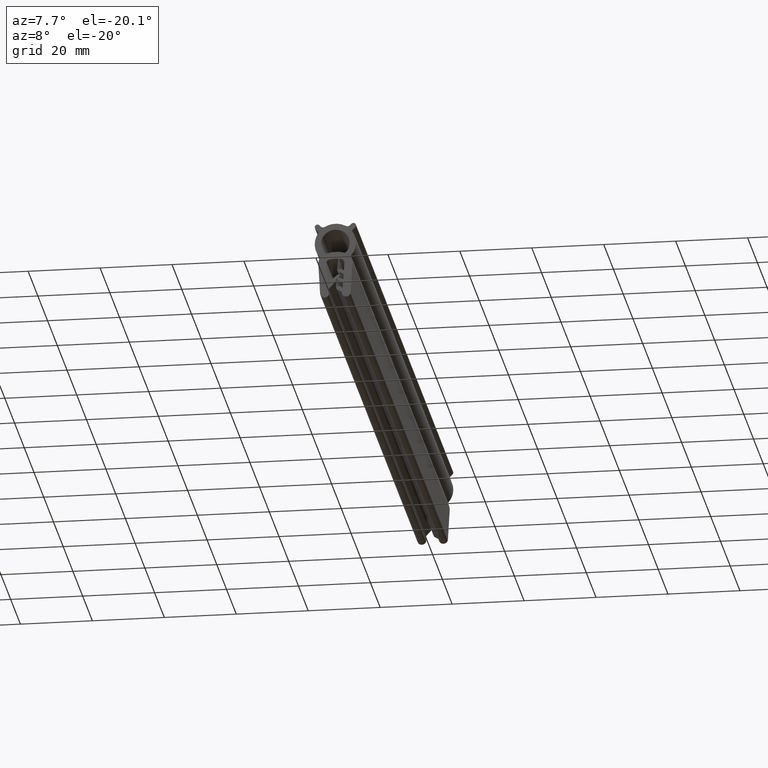
[diagram: clean part render]
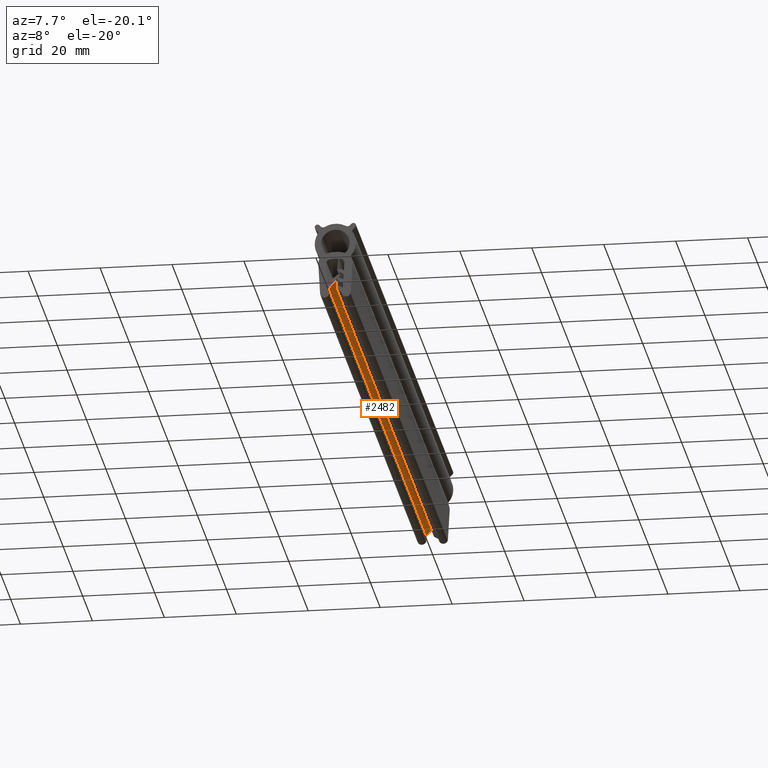
[diagram: same view with one face highlighted and labeled with its STEP entity id]
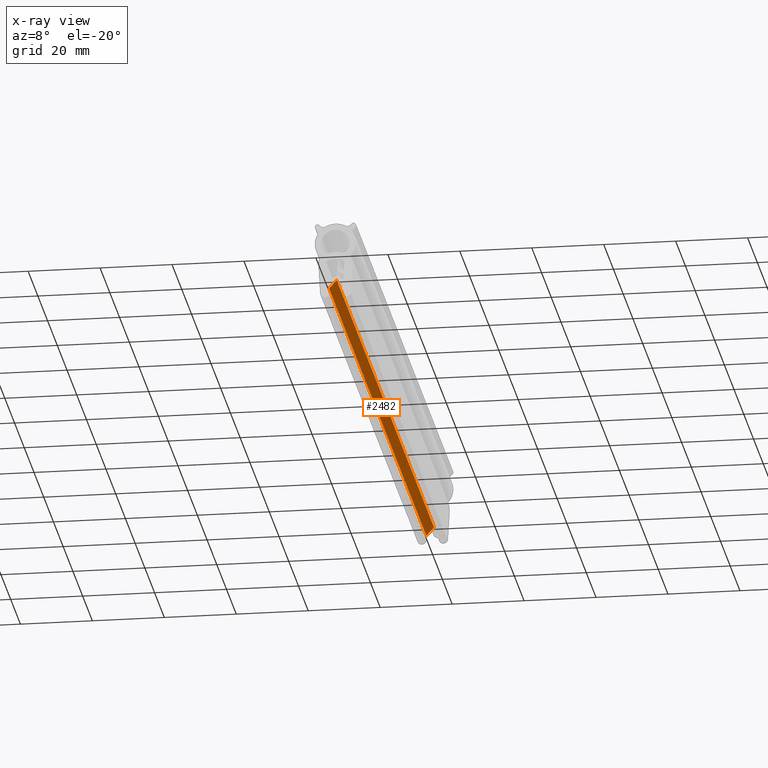
[diagram: x-ray of the same camera — body ghosted, the highlighted face saturated]
A machine part, auxiliary view. The second image highlights one B-rep face of the part: STEP entity #2482.
The next image is the same camera in x-ray: the body ghosted, the highlighted face saturated — about 0% of this face is hidden behind the body in this view.
In plain terms, the highlighted face is a freeform B-spline surface patch.
Its self-contained STEP definition (entity closure, byte-faithful):
#650=CARTESIAN_POINT('',(-1.747408564051310,0.0,-18.961503437126652));
#651=VERTEX_POINT('',#650);
#665=CARTESIAN_POINT('',(0.371731644922985,0.0,-16.573792287004348));
#666=VERTEX_POINT('',#665);
#667=CARTESIAN_POINT('',(0.371731644922985,0.0,-16.573792287004348));
#668=CARTESIAN_POINT('',(-1.747408564051310,0.0,-18.961503437126652));
#669=QUASI_UNIFORM_CURVE('',1,(#667,#668),.UNSPECIFIED.,.F.,.U.);
#670=EDGE_CURVE('',#666,#651,#669,.T.);
#760=CARTESIAN_POINT('',(0.371731644922985,200.0,-16.573792287004348));
#761=VERTEX_POINT('',#760);
#767=CARTESIAN_POINT('',(-1.747408564051310,200.0,-18.961503437126652));
#768=VERTEX_POINT('',#767);
#769=CARTESIAN_POINT('',(0.371731644922985,200.0,-16.573792287004348));
#770=CARTESIAN_POINT('',(-1.747408564051310,200.0,-18.961503437126652));
#771=QUASI_UNIFORM_CURVE('',1,(#769,#770),.UNSPECIFIED.,.F.,.U.);
#772=EDGE_CURVE('',#761,#768,#771,.T.);
#2459=CARTESIAN_POINT('',(-1.747408564051310,200.0,-18.961503437126652));
#2460=CARTESIAN_POINT('',(-1.747408564051310,0.0,-18.961503437126652));
#2461=QUASI_UNIFORM_CURVE('',1,(#2459,#2460),.UNSPECIFIED.,.F.,.U.);
#2462=EDGE_CURVE('',#768,#651,#2461,.T.);
#2467=CARTESIAN_POINT('',(-1.853259887133044,-9.989999612361194,-19.080769912892169));
#2468=CARTESIAN_POINT('',(0.477583081684239,-9.989999612361194,-16.454525683152010));
#2469=CARTESIAN_POINT('',(-1.853259887133044,209.990004976779200,-19.080769912892169));
#2470=CARTESIAN_POINT('',(0.477583081684239,209.990004976779200,-16.454525683152010));
#2471=B_SPLINE_SURFACE_WITH_KNOTS('',1,1,((#2467,#2469),(#2468,#2470)),.UNSPECIFIED.,.F.,.F.,.U.,(2,2),(2,2),(0.0,3.511408221715106),(0.0,219.980004589140410),.UNSPECIFIED.);
#2472=ORIENTED_EDGE('',*,*,#670,.T.);
#2473=ORIENTED_EDGE('',*,*,#2462,.F.);
#2474=ORIENTED_EDGE('',*,*,#772,.F.);
#2475=CARTESIAN_POINT('',(0.371731644922985,200.0,-16.573792287004348));
#2476=CARTESIAN_POINT('',(0.371731644922985,0.0,-16.573792287004348));
#2477=QUASI_UNIFORM_CURVE('',1,(#2475,#2476),.UNSPECIFIED.,.F.,.U.);
#2478=EDGE_CURVE('',#761,#666,#2477,.T.);
#2479=ORIENTED_EDGE('',*,*,#2478,.T.);
#2480=EDGE_LOOP('',(#2472,#2473,#2474,#2479));
#2481=FACE_OUTER_BOUND('',#2480,.T.);
#2482=ADVANCED_FACE('',(#2481),#2471,.F.);